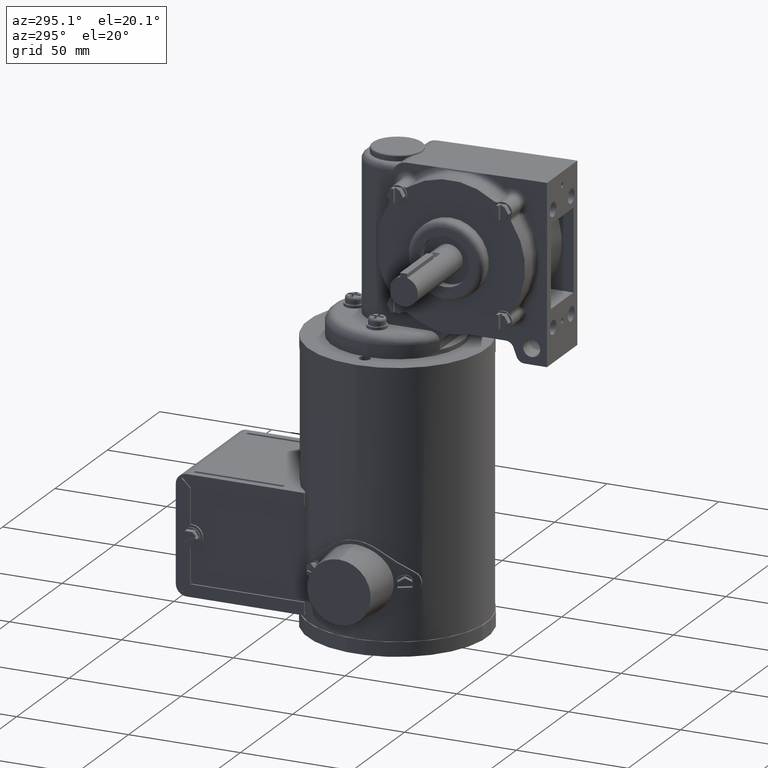
[diagram: clean part render]
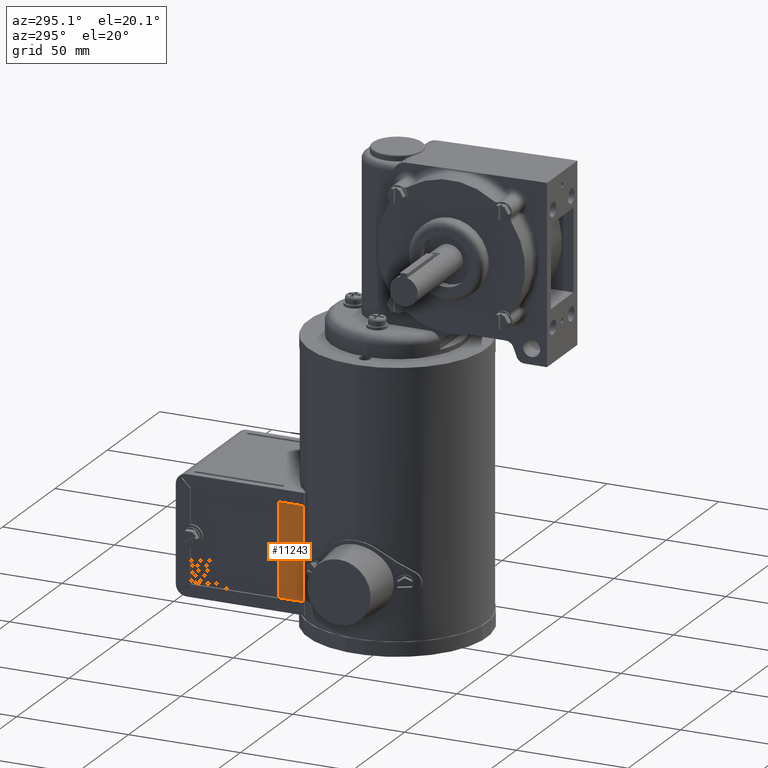
[diagram: same view with one face highlighted and labeled with its STEP entity id]
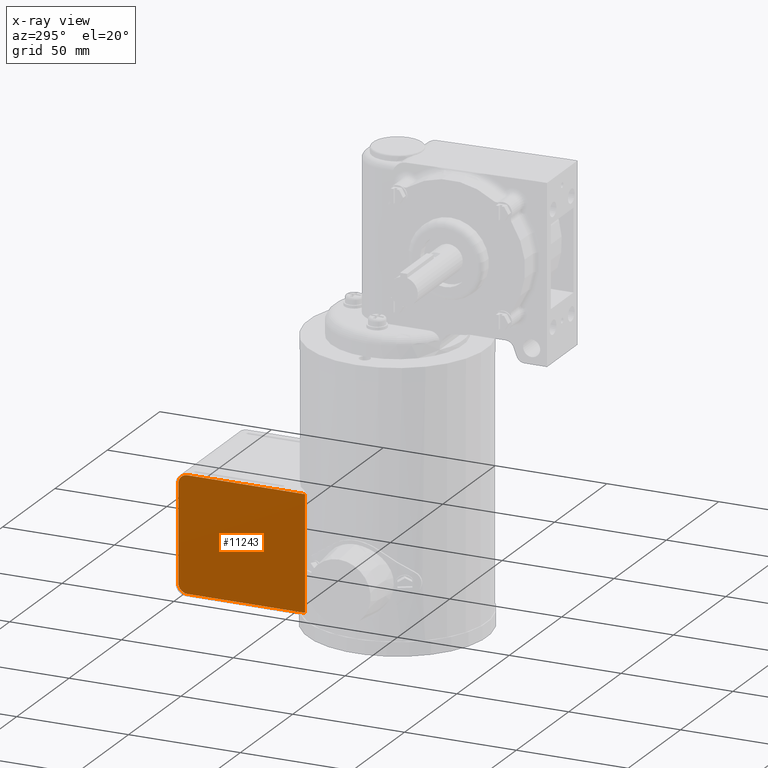
[diagram: x-ray of the same camera — body ghosted, the highlighted face saturated]
A machine part, auxiliary view. The second image highlights one B-rep face of the part: STEP entity #11243.
The next image is the same camera in x-ray: the body ghosted, the highlighted face saturated — about 0% of this face is hidden behind the body in this view.
In plain terms, the highlighted planar face has unit normal (1, 0, -0).
Its self-contained STEP definition (entity closure, byte-faithful):
#506 = LINE ( 'NONE', #18803, #6812 ) ;
#567 = LINE ( 'NONE', #26520, #27431 ) ;
#2105 = DIRECTION ( 'NONE',  ( 0.0000000000000000000, 1.000000000000000000, 0.0000000000000000000 ) ) ;
#2940 = CARTESIAN_POINT ( 'NONE',  ( -1.098749999999999200, 3.183000000000008300, -4.059200000000007700 ) ) ;
#3275 = EDGE_CURVE ( 'NONE', #24878, #12753, #506, .T. ) ;
#5028 = ORIENTED_EDGE ( 'NONE', *, *, #9484, .T. ) ;
#5206 = EDGE_CURVE ( 'NONE', #12753, #11177, #17193, .T. ) ;
#5237 = EDGE_LOOP ( 'NONE', ( #13846, #13315, #9328, #5028, #17950, #22301 ) ) ;
#6358 = CARTESIAN_POINT ( 'NONE',  ( -1.098749999999999900, 3.183000000000003800, -6.075000000000000200 ) ) ;
#6812 = VECTOR ( 'NONE', #25221, 39.37007874015748100 ) ;
#8678 = CARTESIAN_POINT ( 'NONE',  ( -1.098749999999997700, -1.570039370078740100, 3.722613829544849600E-016 ) ) ;
#9225 = AXIS2_PLACEMENT_3D ( 'NONE', #23733, #11054, #25858 ) ;
#9328 = ORIENTED_EDGE ( 'NONE', *, *, #3275, .F. ) ;
#9484 = EDGE_CURVE ( 'NONE', #24878, #18232, #22825, .T. ) ;
#10806 = DIRECTION ( 'NONE',  ( -3.388044440996457800E-016, 0.0000000000000000000, -1.000000000000000000 ) ) ;
#11054 = DIRECTION ( 'NONE',  ( -1.000000000000000000, -0.0000000000000000000, 3.388044440996457800E-016 ) ) ;
#11177 = VERTEX_POINT ( 'NONE', #6358 ) ;
#11243 = ADVANCED_FACE ( 'NONE', ( #15568 ), #23403, .F. ) ;
#11341 = CARTESIAN_POINT ( 'NONE',  ( -1.098749999999999700, 3.342450000000000800, -5.915550000000000500 ) ) ;
#11344 = CARTESIAN_POINT ( 'NONE',  ( -1.098749999999999700, -1.570039370078740100, -6.075000000000000200 ) ) ;
#11501 = CARTESIAN_POINT ( 'NONE',  ( -1.098749999999999900, 3.183000000000003800, -5.915550000000000500 ) ) ;
#11556 = VECTOR ( 'NONE', #2105, 39.37007874015748100 ) ;
#12753 = VERTEX_POINT ( 'NONE', #21381 ) ;
#13315 = ORIENTED_EDGE ( 'NONE', *, *, #5206, .F. ) ;
#13471 = DIRECTION ( 'NONE',  ( 0.0000000000000000000, 1.000000000000000000, 0.0000000000000000000 ) ) ;
#13658 = DIRECTION ( 'NONE',  ( 0.0000000000000000000, 0.0000000000000000000, -1.000000000000000000 ) ) ;
#13846 = ORIENTED_EDGE ( 'NONE', *, *, #18749, .F. ) ;
#15568 = FACE_OUTER_BOUND ( 'NONE', #5237, .T. ) ;
#17193 = LINE ( 'NONE', #11344, #22107 ) ;
#17418 = AXIS2_PLACEMENT_3D ( 'NONE', #8678, #23499, #10806 ) ;
#17730 = CIRCLE ( 'NONE', #27461, 0.1594500000000004000 ) ;
#17950 = ORIENTED_EDGE ( 'NONE', *, *, #25698, .T. ) ;
#18232 = VERTEX_POINT ( 'NONE', #2940 ) ;
#18323 = DIRECTION ( 'NONE',  ( -3.388044440996457300E-016, 0.0000000000000000000, -1.000000000000000000 ) ) ;
#18749 = EDGE_CURVE ( 'NONE', #11177, #26971, #17730, .T. ) ;
#18803 = CARTESIAN_POINT ( 'NONE',  ( -1.098749999999997900, 1.110925149368760900, -1.734999999999999200 ) ) ;
#21381 = CARTESIAN_POINT ( 'NONE',  ( -1.098749999999999200, 1.110925149368759500, -6.075000000000000200 ) ) ;
#22107 = VECTOR ( 'NONE', #13471, 39.37007874015748100 ) ;
#22295 = CARTESIAN_POINT ( 'NONE',  ( -1.098749999999998600, 1.110925149368760200, -4.059200000000000600 ) ) ;
#22301 = ORIENTED_EDGE ( 'NONE', *, *, #23838, .T. ) ;
#22825 = LINE ( 'NONE', #27488, #11556 ) ;
#23403 = PLANE ( 'NONE',  #17418 ) ;
#23499 = DIRECTION ( 'NONE',  ( 1.000000000000000000, 0.0000000000000000000, -3.388044440996457800E-016 ) ) ;
#23733 = CARTESIAN_POINT ( 'NONE',  ( -1.098749999999999200, 3.183000000000008300, -4.218650000000002000 ) ) ;
#23838 = EDGE_CURVE ( 'NONE', #25534, #26971, #567, .T. ) ;
#24595 = CIRCLE ( 'NONE', #9225, 0.1594499999999954800 ) ;
#24878 = VERTEX_POINT ( 'NONE', #22295 ) ;
#25221 = DIRECTION ( 'NONE',  ( -0.0000000000000000000, -0.0000000000000000000, -1.000000000000000000 ) ) ;
#25534 = VERTEX_POINT ( 'NONE', #27071 ) ;
#25698 = EDGE_CURVE ( 'NONE', #18232, #25534, #24595, .T. ) ;
#25858 = DIRECTION ( 'NONE',  ( 0.0000000000000000000, 0.0000000000000000000, -1.000000000000000000 ) ) ;
#26305 = DIRECTION ( 'NONE',  ( 1.000000000000000000, 0.0000000000000000000, -3.388044440996457800E-016 ) ) ;
#26520 = CARTESIAN_POINT ( 'NONE',  ( -1.098749999999997700, 3.342450000000000800, 3.722613829544849600E-016 ) ) ;
#26971 = VERTEX_POINT ( 'NONE', #11341 ) ;
#27071 = CARTESIAN_POINT ( 'NONE',  ( -1.098749999999999200, 3.342450000000005300, -4.218650000000002000 ) ) ;
#27431 = VECTOR ( 'NONE', #18323, 39.37007874015748100 ) ;
#27461 = AXIS2_PLACEMENT_3D ( 'NONE', #11501, #26305, #13658 ) ;
#27488 = CARTESIAN_POINT ( 'NONE',  ( -1.098749999999999000, -1.570039370078740100, -4.059200000000000600 ) ) ;